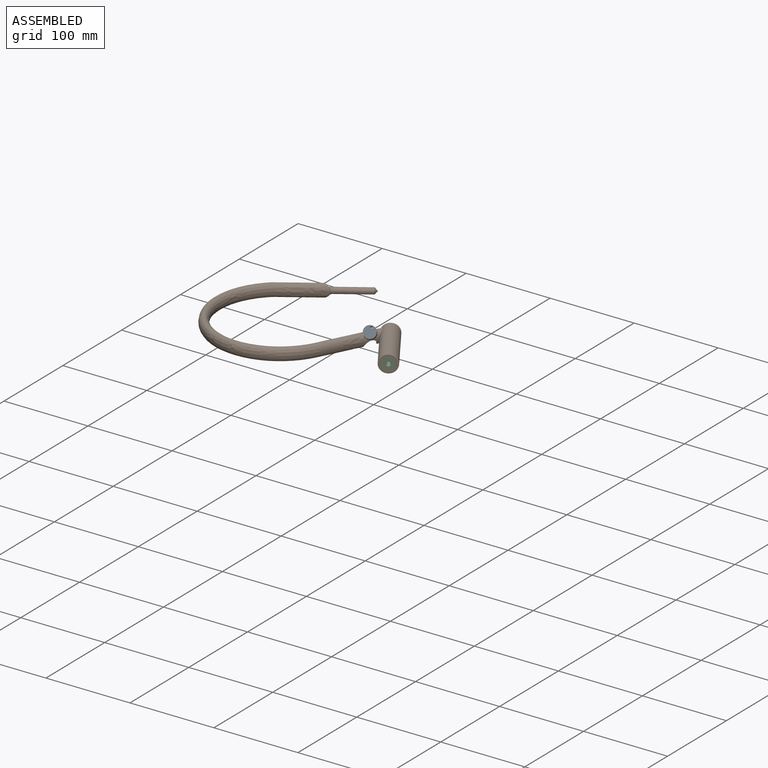
[diagram: assembled view]
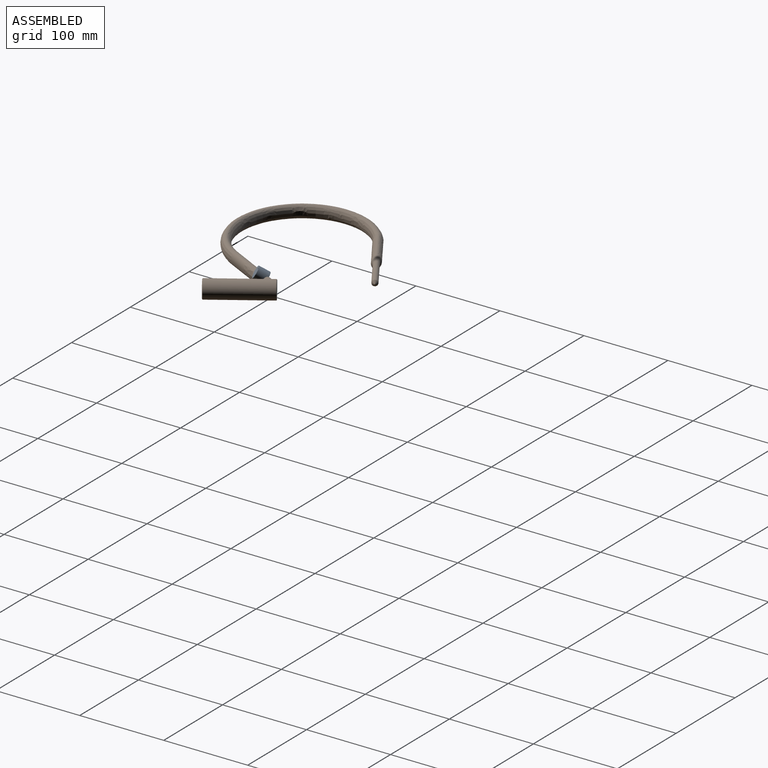
[diagram: assembled view, second angle]
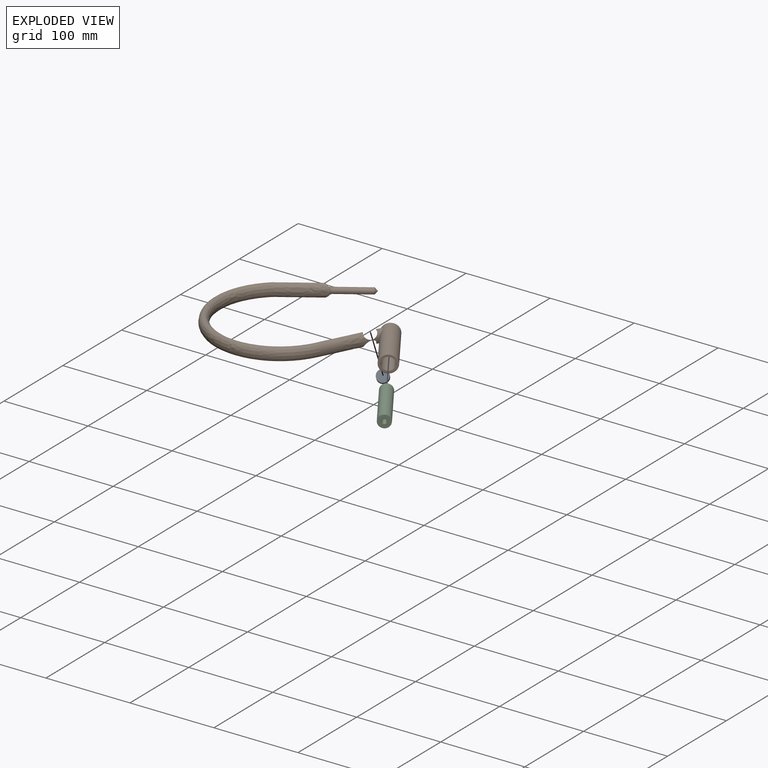
[diagram: exploded view]
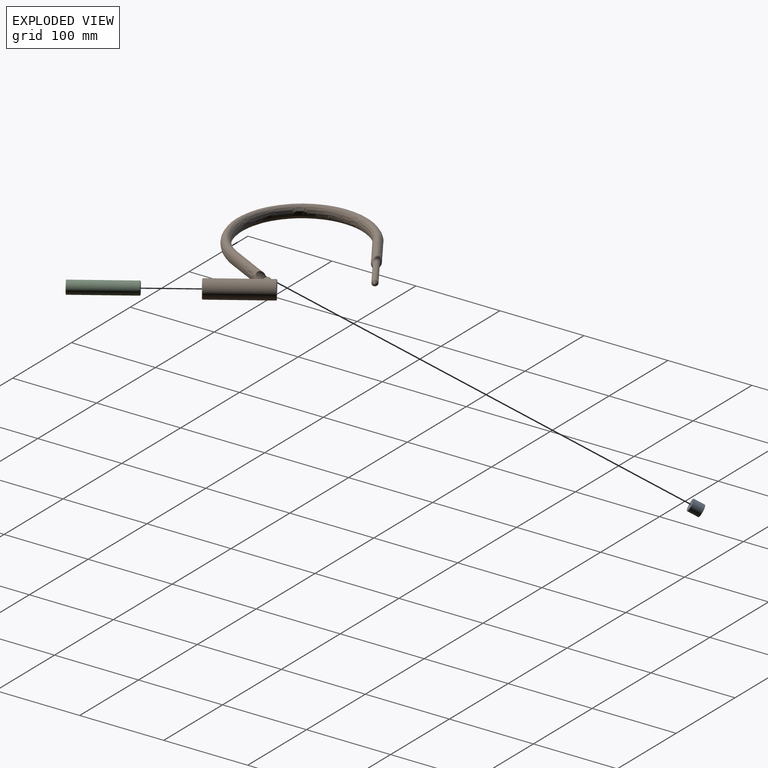
[diagram: exploded view, second angle]
ASSEMBLY  parts=3 mates=2
PART A: 5 faces, bbox 18.7x19.1x18.5 mm
  f0: cylinder r=6.9mm len=18.71mm, axis (-0.48,0.72,-0.5), area 550.6mm2, adj f1,f4
  f1: plane 12.14x11.95mm, normal (0.48,-0.72,0.5), area 146.4mm2, adj f0,f3
  f2: plane 11.61x11.43mm, normal (-0.48,0.72,-0.5), area 133.7mm2, adj f3,f4
  f3: cylinder r=1mm len=10.79mm, axis (-0.48,0.72,-0.5), area 81.7mm2, adj f1,f2
  f4: torus R=6.6mm, axis (0.48,-0.72,0.5), area 20.1mm2, adj f0,f2
PART B: 31 faces, bbox 230.6x193.6x24.6 mm
  f0: bspline ~14.84x4.41mm, area 0mm2, adj f1,f30
  f1: bspline ~54.46x34.88mm, area 2033.7mm2, adj f0,f2,f10,f11,f12
  f2: bspline ~15x12.09mm, area 6.3mm2, adj f1,f3,f8,f9
  f3: bspline ~2.91x2.6mm, area 0.5mm2, adj f2,f4,f9,f10
  f4: bspline ~13.4x9.55mm, area 61.2mm2, adj f3,f5,f6,f8,f10,f11,f30
  f5: bspline ~13.61x4.83mm, area 26.1mm2, adj f4,f6,f9
  f6: cylinder r=3.5mm len=42.56mm, axis (0.84,0.55,0), area 956.2mm2, adj f4,f5,f7
  f7: cone r=3.5mm half-angle=45deg, axis (-0.84,-0.55,0), area 54.4mm2, adj f6
  f8: bspline ~2.9x2.57mm, area 0.5mm2, adj f2,f4,f9,f11
  f9: bspline ~12.57x3.44mm, area 23.5mm2, adj f2,f3,f5,f8
  f10: bspline ~7.34x4.74mm, area 17.4mm2, adj f1,f3,f4,f30
  f11: bspline ~7.34x4.74mm, area 17.4mm2, adj f1,f4,f8,f30
  f12: bspline ~151.78x138.96mm, area 10708.1mm2, adj f1,f13
  f13: bspline ~35.35x22.28mm, area 1017.6mm2, adj f12,f14
  f14: bspline ~35.35x22.28mm, area 1017.6mm2, adj f13,f15,f27,f28,f29
  f15: cylinder r=7mm len=21.89mm, axis (-0.48,0.72,-0.5), area 152.7mm2, adj f14,f16,f25,f26,f27,f29
  f16: bspline ~20.14x16.19mm, area 203.5mm2, adj f15,f17,f18,f19,f25,f27,f28
  f17: cylinder r=7mm len=3.19mm, axis (-0.48,0.72,-0.5), area 0mm2, adj f16,f18
  f18: bspline ~4.48x1.73mm, area 0.2mm2, adj f16,f17,f28
  f19: cylinder r=10.5mm len=71.71mm, axis (0.55,-0.84,0), area 4592.7mm2, adj f16,f20,f24
  f20: cone r=10.5mm half-angle=45deg, axis (0.55,-0.84,0), area 45.5mm2, adj f19,f21
  f21: plane 20x16.72mm, normal (-0.55,0.84,0), area 137.4mm2, adj f20,f22
  f22: cylinder r=7.5mm len=69.25mm, axis (0.55,-0.84,0), area 3440mm2, adj f21,f23
  f23: plane 20x16.72mm, normal (0.55,-0.84,0), area 137.4mm2, adj f22,f24
  f24: cone r=10mm half-angle=45deg, axis (-0.55,0.84,0), area 45.5mm2, adj f19,f23
  f25: bspline ~16.45x12.53mm, area 10.7mm2, adj f15,f16,f26,f28
  f26: bspline ~20.64x16.97mm, area 0.6mm2, adj f15,f25,f28,f29
  f27: bspline ~7.14x6.46mm, area 18.1mm2, adj f14,f15,f16,f28
  f28: cylinder r=7mm len=23.37mm, axis (-0.48,0.72,0.5), area 155.5mm2, adj f14,f16,f18,f25,f26,f27,f29
  f29: bspline ~14.99x11.65mm, area 121.7mm2, adj f14,f15,f26,f28
  f30: bspline ~14.96x5.07mm, area 35.9mm2, adj f0,f4,f10,f11
PART C: 7 faces, bbox 52.5x69.1x16 mm
  f0: cylinder r=7.4mm len=68.3mm, axis (-0.55,0.84,0), area 3347.7mm2, adj f3,f4
  f1: plane 12.8x10.7mm, normal (-0.55,0.84,0), area 104mm2, adj f4,f6
  f2: cylinder r=2.5mm len=63.26mm, axis (-0.55,0.84,0), area 1137.3mm2, adj f5,f6
  f3: plane 14.8x12.37mm, normal (0.55,-0.84,0), area 147.4mm2, adj f0,f5
  f4: torus R=6.4mm, axis (0.55,-0.84,0), area 69.4mm2, adj f0,f1
  f5: cone r=2.8mm half-angle=45deg, axis (0.55,-0.84,0), area 7.1mm2, adj f2,f3
  f6: cone r=2.5mm half-angle=45deg, axis (-0.55,0.84,0), area 7.1mm2, adj f1,f2
PLACE A t=(19.82,-11.61,34.56)mm
PLACE B t=(17.68,-8.41,32.22)mm
PLACE C t=(17.68,-8.41,32.22)mm
MATE slider C.f4 <-> B.f20  axis (-0.55,0.84,0) through (27.63,3.75,32.22)mm
MATE cylindrical A.f1 <-> B.f15  axis (0.48,-0.72,0.5) through (22.85,-24.71,42.05)mm
